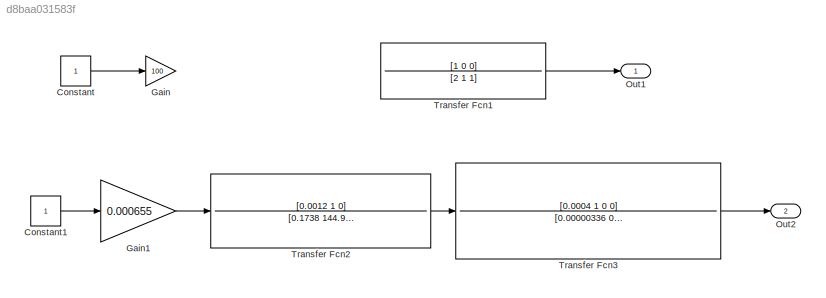
MODEL slx_d8baa031583f
KIND model
CONFIG AbsTol = auto
CONFIG EnableMultiTasking = off
CONFIG FixedStep = auto
CONFIG MaxStep = auto
CONFIG MinStep = auto
CONFIG RelTol = 1e-3
CONFIG SampleTimeConstraint = Unconstrained
CONFIG Solver = VariableStepAuto
CONFIG SolverName = VariableStepAuto
CONFIG StartTime = 0.0
CONFIG StopTime = 10.0
WORKSPACE source: mxarray member
WORKSPACE K = 25
BLOCK [Constant] Constant
BLOCK [Constant] Constant1
BLOCK [Gain] Gain
  Gain = 100
BLOCK [Gain] Gain1
  Gain = 0.000655
BLOCK [Outport] Out1
BLOCK [Outport] Out2
  Port = 2
BLOCK [TransferFcn] Transfer Fcn1
  Denominator = [2 1 1]
  Numerator = [1 0 0]
BLOCK [TransferFcn] Transfer Fcn2
  Denominator = [0.1738 144.9 1]
  Numerator = [0.0012 1 0]
BLOCK [TransferFcn] Transfer Fcn3
  Denominator = [0.00000336 0.0084 0.03117 0.164]
  Numerator = [0.0004 1 0 0]
LINE Constant1:1 -> Gain1:1
LINE Constant:1 -> Gain:1
LINE Gain1:1 -> Transfer Fcn2:1
LINE Transfer Fcn1:1 -> Out1:1
LINE Transfer Fcn2:1 -> Transfer Fcn3:1
LINE Transfer Fcn3:1 -> Out2:1
